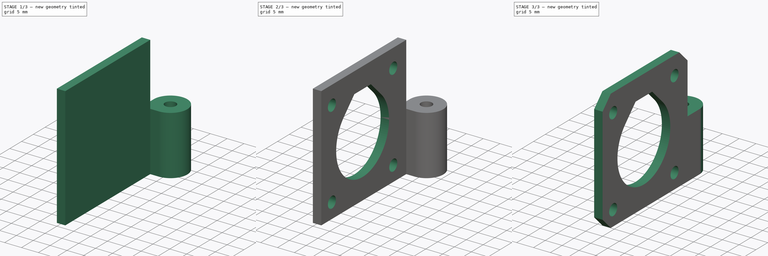
[diagram: build sequence overview — one tinted view per stage of 3, left to right]
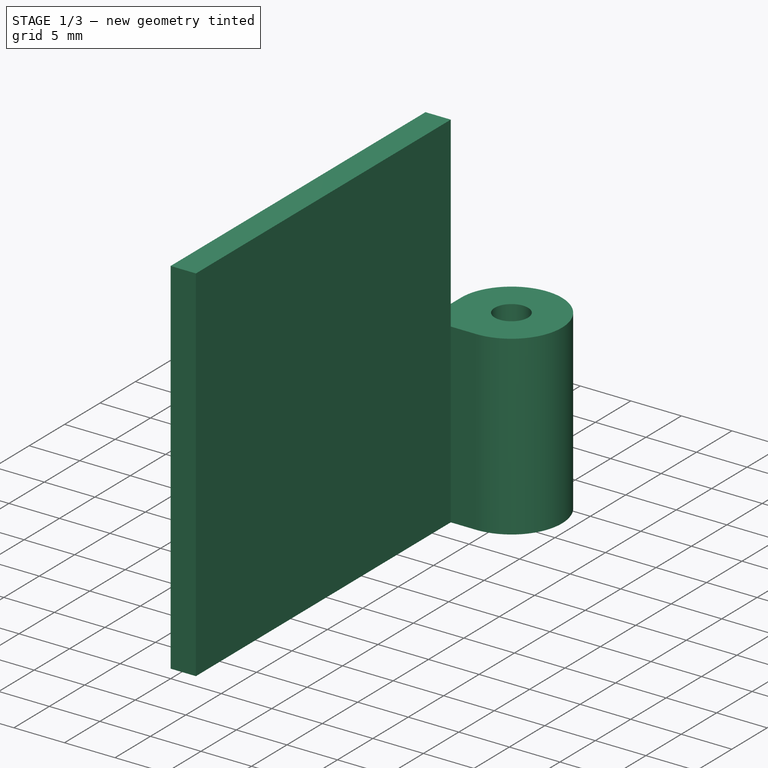
[diagram: stage 1 of 3 — iso view after this stage's code; geometry added in this stage tinted green]
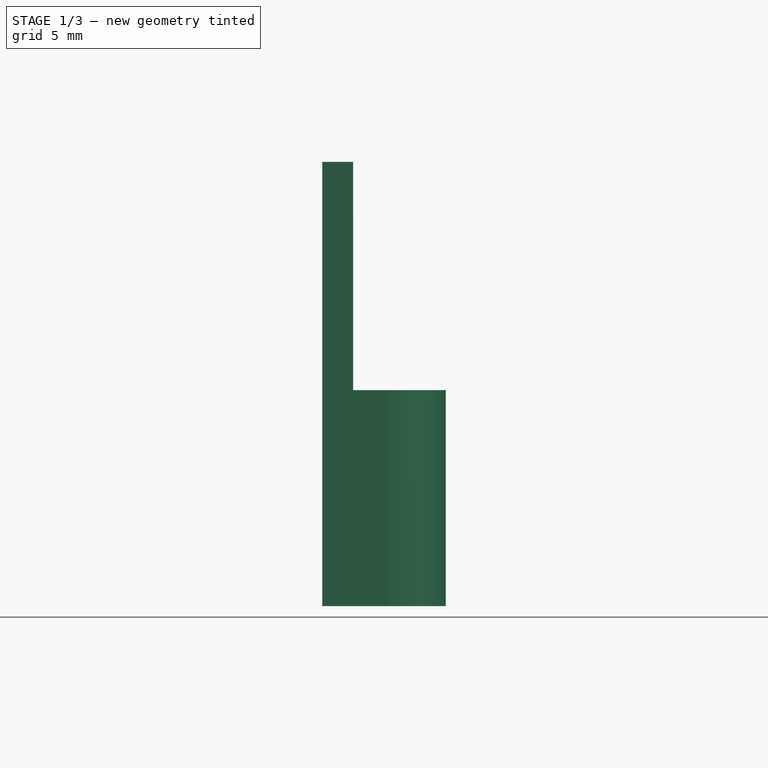
[diagram: stage 1 of 3 — front view after this stage's code; geometry added in this stage tinted green]
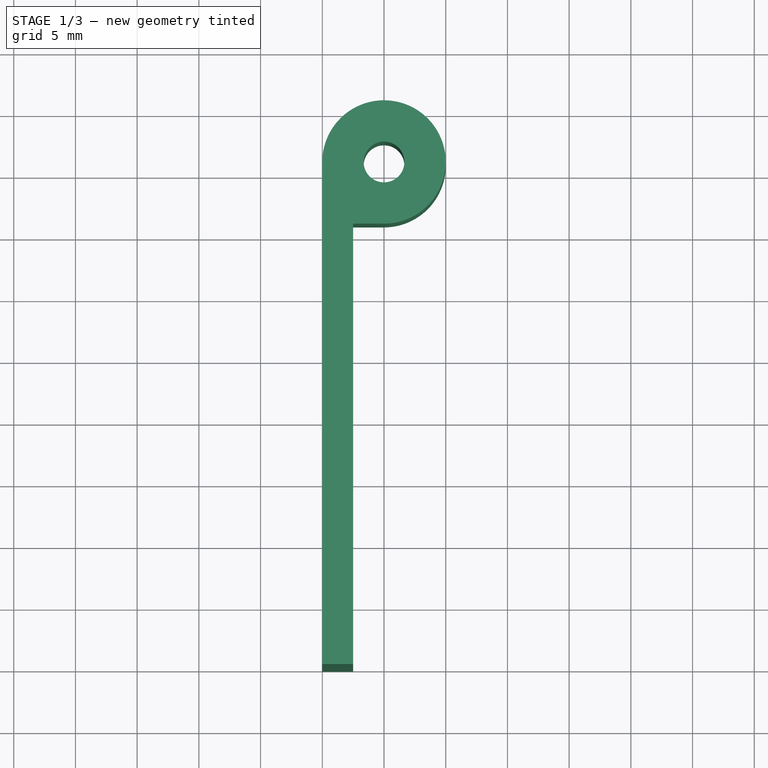
[diagram: stage 1 of 3 — top view after this stage's code; geometry added in this stage tinted green]
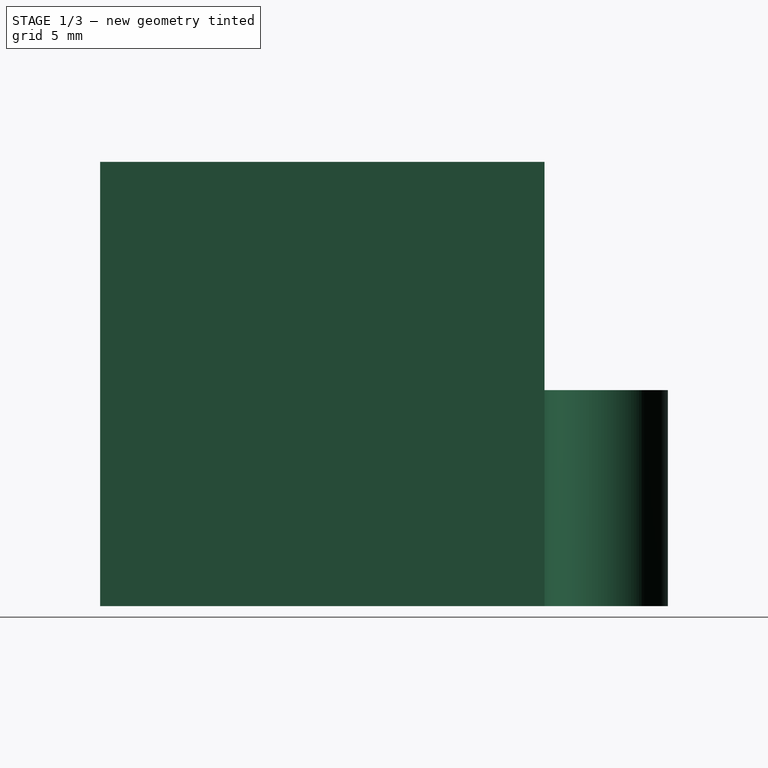
[diagram: stage 1 of 3 — right view after this stage's code; geometry added in this stage tinted green]
FCSTD DOCUMENT  (FreeCAD 0.16R6707 (Git))
Label: soporte
License: CreativeCommons Attribution-ShareAlike
LicenseURL: http://creativecommons.org/licenses/by-sa/4.0/
objects: Sketcher::SketchObject×2, PartDesign::Pad×1, Part::Box×1, Part::MultiFuse×1, PartDesign::Pocket×1, PartDesign::Chamfer×1, Part::Mirroring×1
note: 10 computed .brp shape members not serialized (recipe doc carries the construction recipe); baked Part::Feature solids carry a one-line shape summary decoded from their .brp

FEATURE [Sketcher::SketchObject] Sketch
  sketch-geometry (6):
    g0: LineSegment StartX=5.5e-11 StartY=0 StartZ=0 EndX=2.5 EndY=0 EndZ=0
    g1: LineSegment StartX=2.5 StartY=0 StartZ=0 EndX=2.5 EndY=36 EndZ=0
    g2: LineSegment StartX=5.5e-11 StartY=41 StartZ=0 EndX=5.5e-11 EndY=0 EndZ=0
    g3: ArcOfCircle CenterX=5 CenterY=41 CenterZ=0 NormalX=0 NormalY=0 NormalZ=1 Radius=5 StartAngle=4.71239 EndAngle=9.42477
    g4: LineSegment StartX=2.5 StartY=36 StartZ=0 EndX=5.00002 EndY=36 EndZ=0
    g5: Circle CenterX=5 CenterY=41 CenterZ=0 NormalX=0 NormalY=0 NormalZ=1 Radius=1.65
  constraints (17):
    c: Coincident(g0,g1)
    c: Coincident(g2,g0)
    c: Horizontal(g0)
    c: Vertical(g1)
    c: Vertical(g2)
    c: Coincident(g0,g-1)
    c: DistanceY(g1) = 36
    c: Coincident(g3,g2)
    c: Tangent(g2,g3)
    c: DistanceX(g0) = 2.5
    c: Radius(g3) = 5
    c: Coincident(g4,g1)
    c: Coincident(g4,g3)
    c: Horizontal(g4)
    c: Tangent(g4,g3)
    c: Coincident(g5,g3)
    c: Radius(g5) = 1.65
FEATURE [PartDesign::Pad] Pad
  Length = 17.5
  Length2 = 100
  Sketch = -> Sketch
  Type = 0
FEATURE [Part::Box] Box  label="Cubo"
  Height = 36
  Length = 2.5
  Width = 36
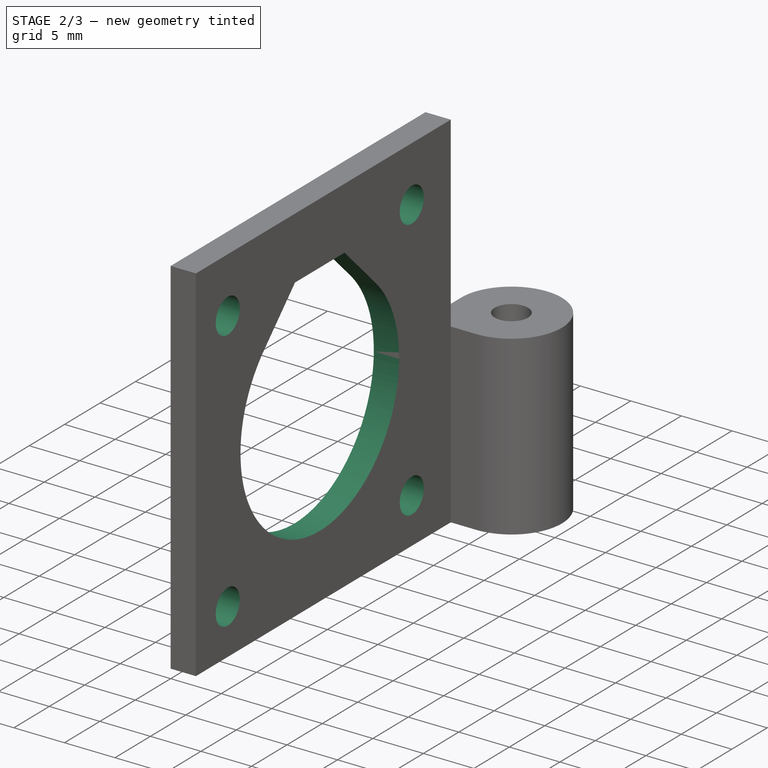
[diagram: stage 2 of 3 — iso view after this stage's code; geometry added in this stage tinted green]
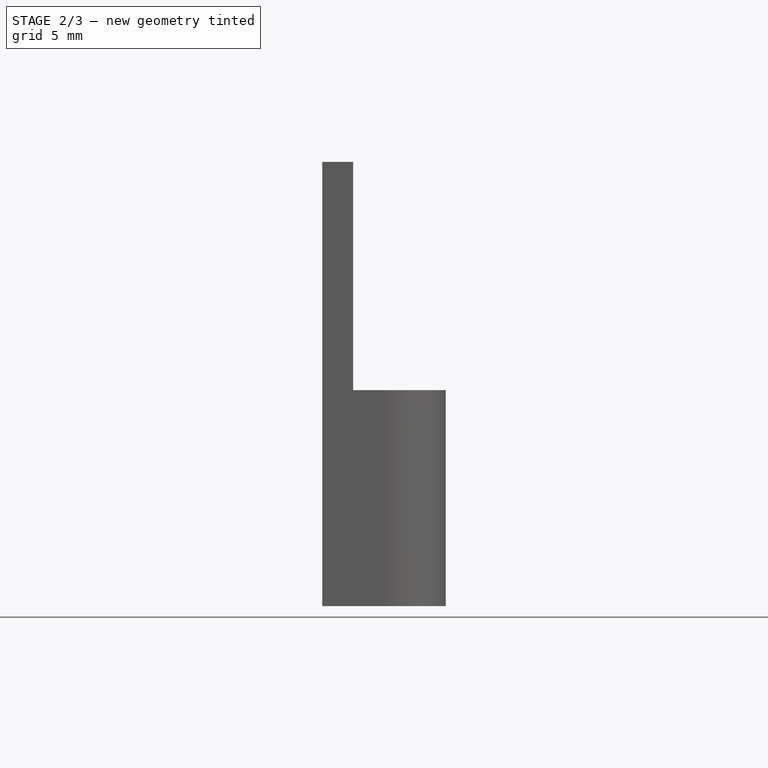
[diagram: stage 2 of 3 — front view after this stage's code; geometry added in this stage tinted green]
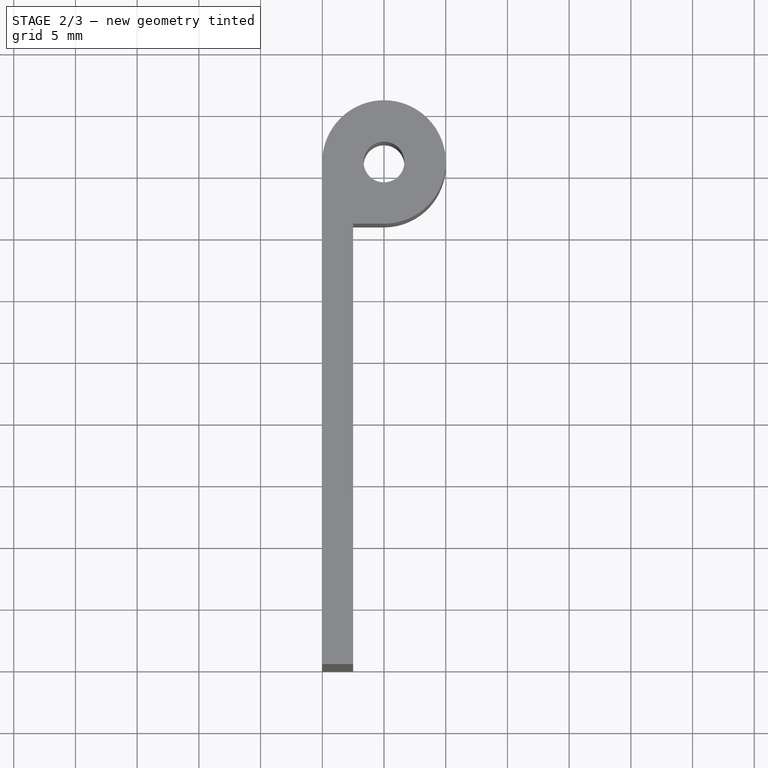
[diagram: stage 2 of 3 — top view after this stage's code; geometry added in this stage tinted green]
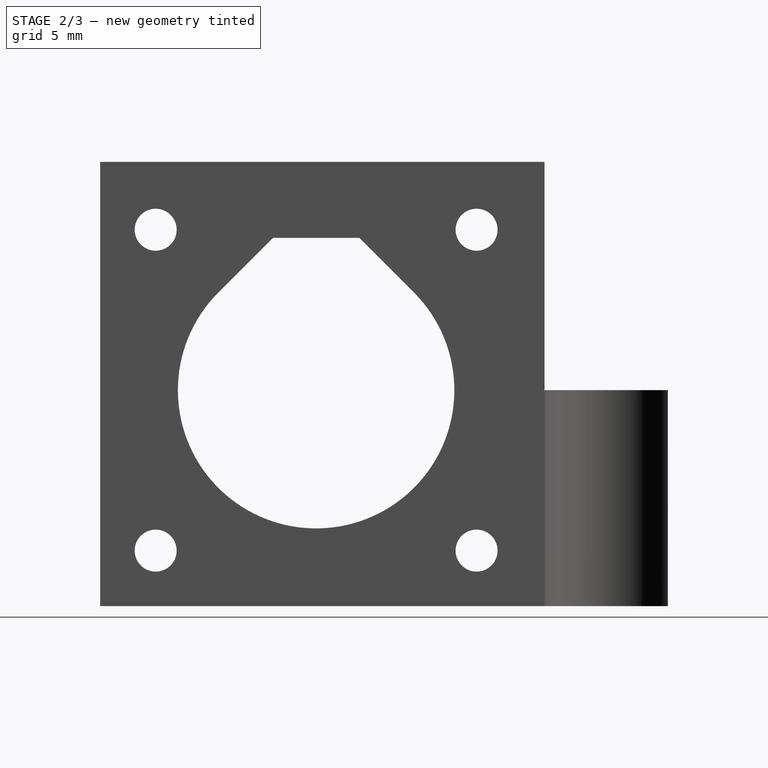
[diagram: stage 2 of 3 — right view after this stage's code; geometry added in this stage tinted green]
FEATURE [Part::MultiFuse] Fusion
  Shapes = -> [Pad,Box]
FEATURE [Sketcher::SketchObject] Sketch001
  Placement = pos=(2.5,0,0) rot=(0.57735,0.57735,0.57735;2.0944rad)
  Support = -> Fusion [Face9]
  sketch-geometry (14):
    g0: LineSegment [constr] StartX=4.5 StartY=4.5 StartZ=0 EndX=30.5 EndY=4.5 EndZ=0
    g1: LineSegment [constr] StartX=30.5 StartY=4.5 StartZ=0 EndX=30.5 EndY=30.5 EndZ=0
    g2: LineSegment [constr] StartX=30.5 StartY=30.5 StartZ=0 EndX=4.5 EndY=30.5 EndZ=0
    g3: LineSegment [constr] StartX=4.5 StartY=30.5 StartZ=0 EndX=4.5 EndY=4.5 EndZ=0
    g4: Circle CenterX=4.5 CenterY=30.5 CenterZ=0 NormalX=0 NormalY=0 NormalZ=1 Radius=1.7
    g5: Circle CenterX=30.5 CenterY=30.5 CenterZ=0 NormalX=0 NormalY=0 NormalZ=1 Radius=1.7
    g6: Circle CenterX=30.5 CenterY=4.5 CenterZ=0 NormalX=0 NormalY=0 NormalZ=1 Radius=1.7
    g7: Circle CenterX=4.5 CenterY=4.5 CenterZ=0 NormalX=0 NormalY=0 NormalZ=1 Radius=1.7
    g8: Circle [constr] CenterX=17.5 CenterY=17.5 CenterZ=0 NormalX=0 NormalY=0 NormalZ=1 Radius=11.2
    g9: LineSegment StartX=9.58038 StartY=25.4196 StartZ=0 EndX=14 EndY=29.8392 EndZ=0
    g10: LineSegment StartX=14 StartY=29.8392 StartZ=0 EndX=21 EndY=29.8392 EndZ=0
    g11: LineSegment StartX=21 StartY=29.8392 StartZ=0 EndX=25.4196 EndY=25.4196 EndZ=0
    g12: LineSegment [constr] StartX=9.58038 StartY=25.4196 StartZ=0 EndX=25.4196 EndY=25.4196 EndZ=0
    g13: ArcOfCircle CenterX=17.5 CenterY=17.5 CenterZ=0 NormalX=0 NormalY=0 NormalZ=1 Radius=11.2 StartAngle=2.3562 EndAngle=7.06858
  constraints (40):
    c: Coincident(g0,g1)
    c: Coincident(g1,g2)
    c: Coincident(g2,g3)
    c: Coincident(g3,g0)
    c: Horizontal(g0)
    c: Horizontal(g2)
    c: Vertical(g1)
    c: Vertical(g3)
    c: Equal(g3,g2)
    c: DistanceX(g2) = -26
    c: DistanceY(g-1,g0) = 4.5
    c: DistanceX(g-1,g0) = 4.5
    c: Equal(g2,g3)
    c: Equal(g3,g0)
    c: Equal(g0,g1)
    c: Coincident(g4,g2)
    c: Coincident(g5,g1)
    c: Coincident(g6,g0)
    c: Coincident(g7,g0)
    c: Equal(g7,g4)
    c: Equal(g4,g5)
    c: Equal(g5,g6)
    c: Radius(g4) = 1.7
    c: Radius(g8) = 11.2
    c: DistanceY(g8,g0) = -13
    c: DistanceX(g8,g0) = -13
    c: Coincident(g9,g10)
    c: Horizontal(g10)
    c: Coincident(g10,g11)
    c: Angle(g9,g10) = 2.35619
    c: Coincident(g12,g9)
    c: Coincident(g12,g11)
    c: Horizontal(g12)
    c: Coincident(g13,g8)
    c: Coincident(g13,g9)
    c: Coincident(g13,g11)
    c: Tangent(g13,g11)
    c: Tangent(g13,g9)
    c: PointOnObject(g9,g8)
    c: DistanceX(g10,g10) = 7
FEATURE [PartDesign::Pocket] Pocket
  Length = 5
  Sketch = -> Sketch001
  Type = 0
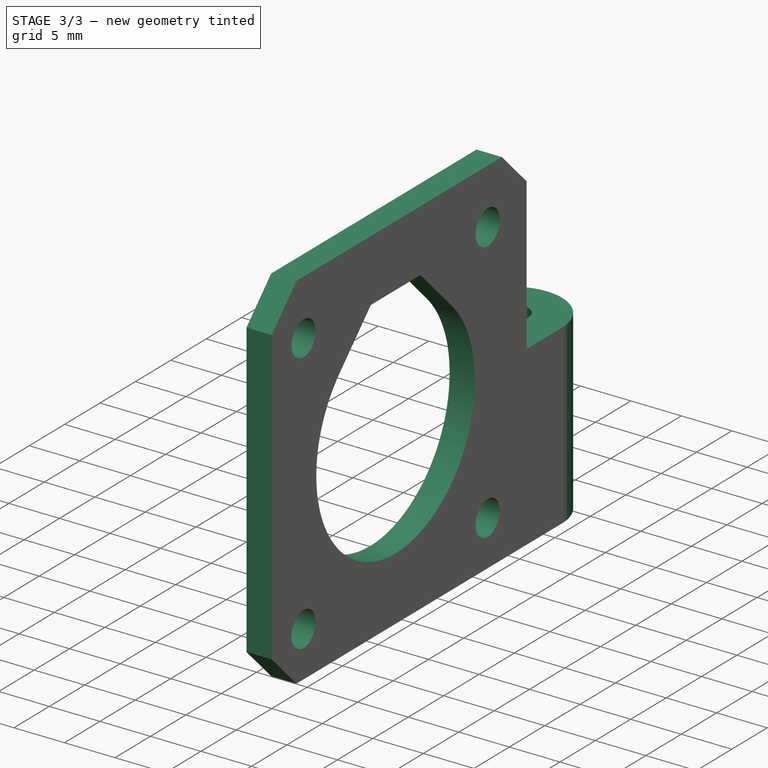
[diagram: stage 3 of 3 — iso view after this stage's code; geometry added in this stage tinted green]
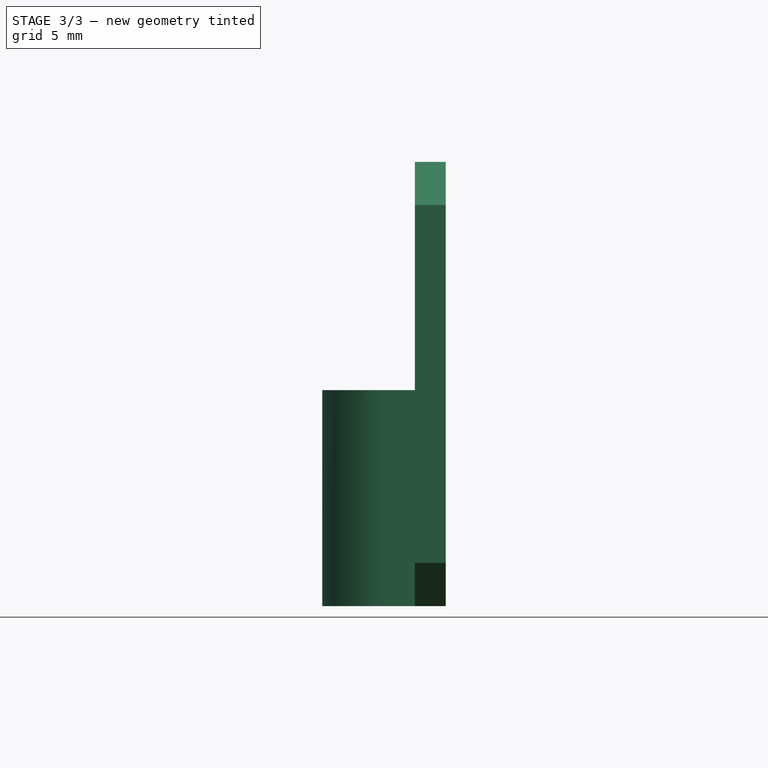
[diagram: stage 3 of 3 — front view after this stage's code; geometry added in this stage tinted green]
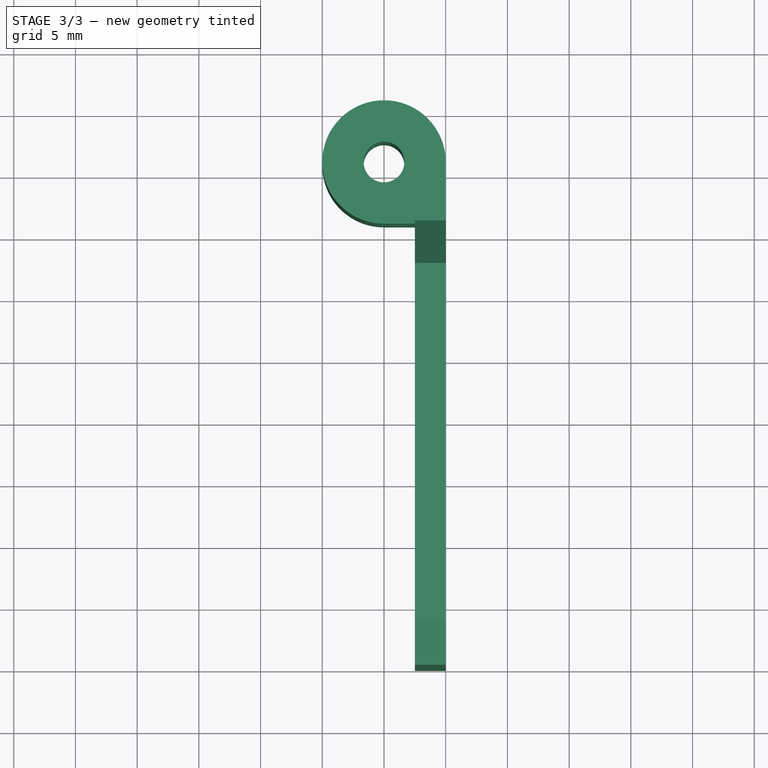
[diagram: stage 3 of 3 — top view after this stage's code; geometry added in this stage tinted green]
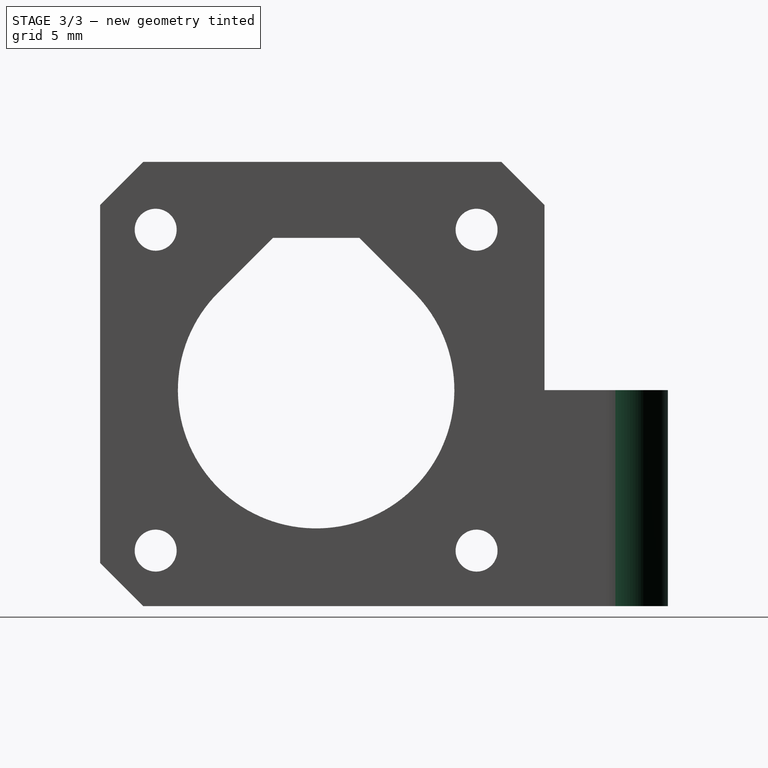
[diagram: stage 3 of 3 — right view after this stage's code; geometry added in this stage tinted green]
FEATURE [PartDesign::Chamfer] Chamfer
  Base = -> Pocket [Edge41,Edge40,Edge24]
  Size = 3.5
FEATURE [Part::Mirroring] Part__Mirroring  label="Chamfer (Mirror #1)"
  Base = (0,0,0)
  Normal = (1,0,0)
  Source = -> Chamfer
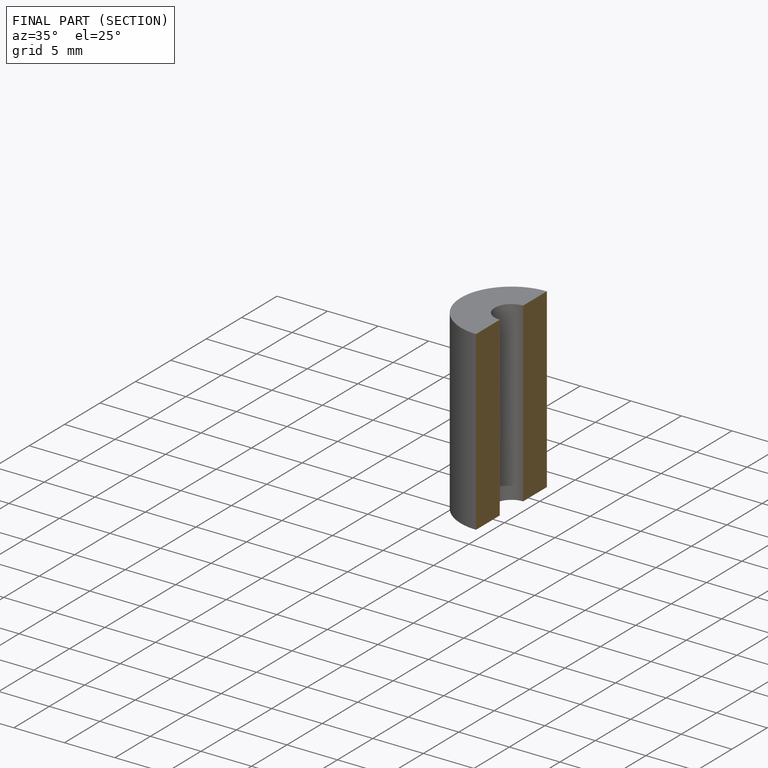
[diagram: finished part — half-section view (interior)]
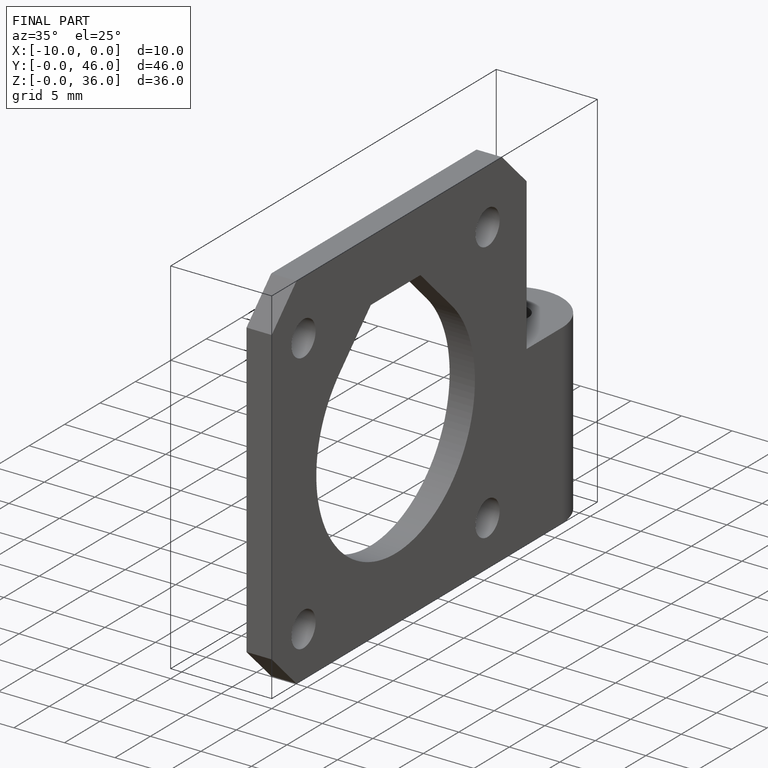
[diagram: finished part — iso view with bounding-box wireframe]
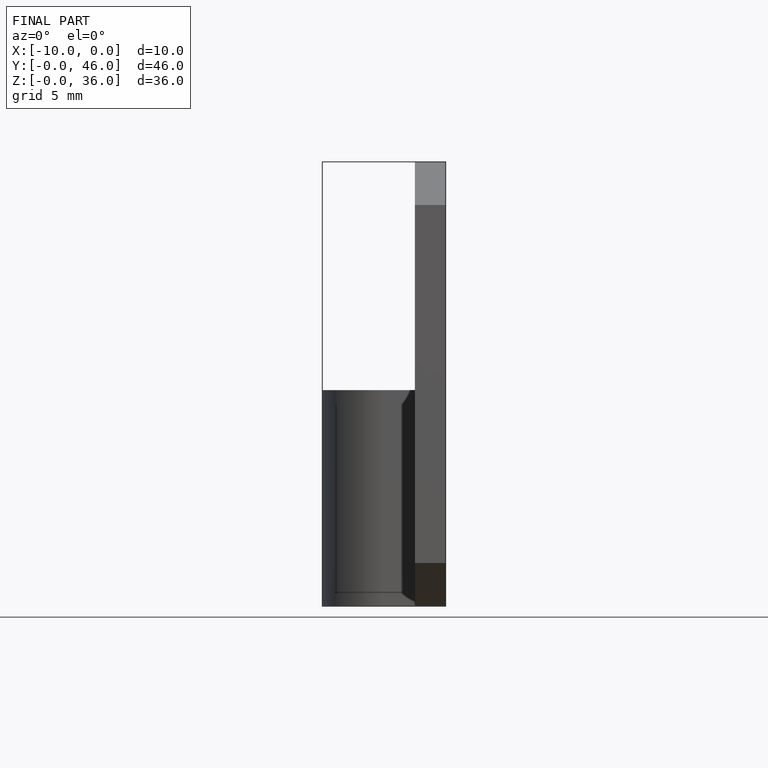
[diagram: finished part — front view with bounding-box wireframe]
